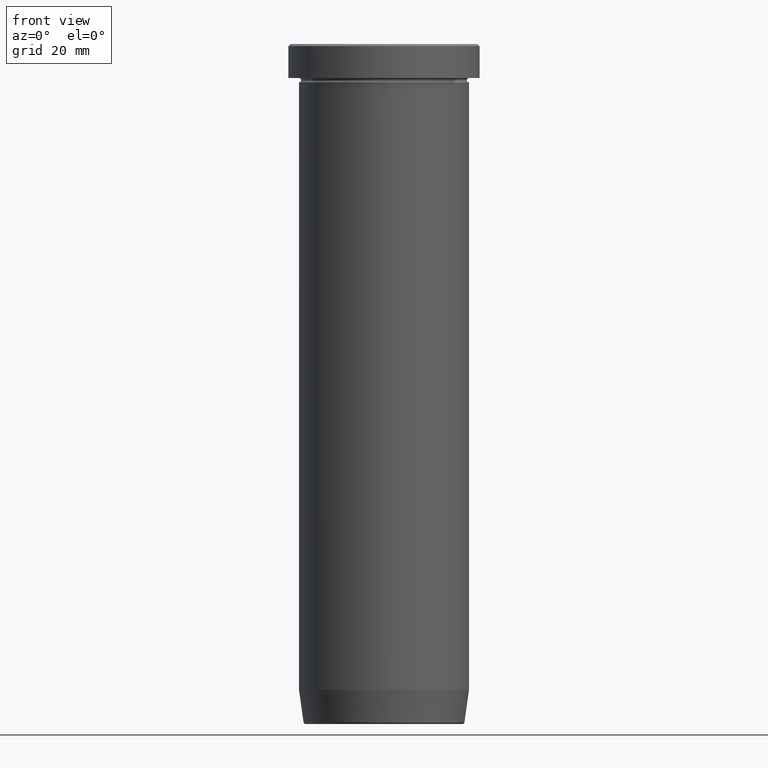
[diagram: clean part render]
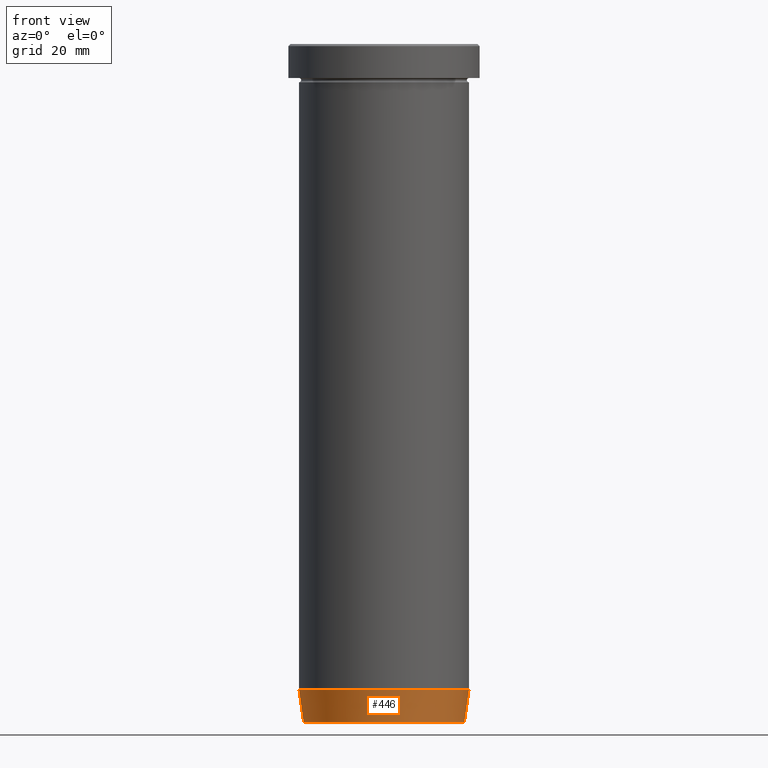
[diagram: same view with one face highlighted and labeled with its STEP entity id]
A machine part, front view. The second image highlights one B-rep face of the part: STEP entity #446.
In plain terms, the highlighted conical surface has half-angle 8 deg.
Its self-contained STEP definition (entity closure, byte-faithful):
#15 = LINE ( 'NONE', #220, #165 ) ;
#21 = VECTOR ( 'NONE', #522, 1000.000000000000227 ) ;
#30 = DIRECTION ( 'NONE',  ( 1.000000000000000000, 0.000000000000000000, 0.000000000000000000 ) ) ;
#52 = FACE_OUTER_BOUND ( 'NONE', #341, .T. ) ;
#56 = DIRECTION ( 'NONE',  ( -1.000000000000000000, 0.000000000000000000, 0.000000000000000000 ) ) ;
#94 = VERTEX_POINT ( 'NONE', #115 ) ;
#98 = VERTEX_POINT ( 'NONE', #535 ) ;
#102 = AXIS2_PLACEMENT_3D ( 'NONE', #124, #132, #30 ) ;
#115 = CARTESIAN_POINT ( 'NONE',  ( 20.00000000000000000, 0.000000000000000000, -151.9999999999999716 ) ) ;
#123 = CIRCLE ( 'NONE', #171, 18.93616398784353194 ) ;
#124 = CARTESIAN_POINT ( 'NONE',  ( 0.000000000000000000, 0.000000000000000000, -159.9999999999999716 ) ) ;
#125 = DIRECTION ( 'NONE',  ( -0.1391731009600663260, 1.704378926181566459E-17, 0.9902680687415701399 ) ) ;
#126 = ORIENTED_EDGE ( 'NONE', *, *, #276, .F. ) ;
#132 = DIRECTION ( 'NONE',  ( -0.000000000000000000, -0.000000000000000000, 1.000000000000000000 ) ) ;
#143 = DIRECTION ( 'NONE',  ( 1.000000000000000000, 0.000000000000000000, 0.000000000000000000 ) ) ;
#154 = CARTESIAN_POINT ( 'NONE',  ( 0.000000000000000000, 0.000000000000000000, -159.5695865504800111 ) ) ;
#165 = VECTOR ( 'NONE', #125, 1000.000000000000227 ) ;
#171 = AXIS2_PLACEMENT_3D ( 'NONE', #154, #534, #56 ) ;
#172 = CARTESIAN_POINT ( 'NONE',  ( 18.93616398784353194, 0.000000000000000000, -159.5695865504800111 ) ) ;
#197 = ORIENTED_EDGE ( 'NONE', *, *, #387, .F. ) ;
#220 = CARTESIAN_POINT ( 'NONE',  ( -18.87567332238086237, 2.311603291600480972E-15, -159.9999999999999716 ) ) ;
#229 = EDGE_CURVE ( 'NONE', #98, #506, #123, .T. ) ;
#276 = EDGE_CURVE ( 'NONE', #438, #94, #431, .T. ) ;
#329 = DIRECTION ( 'NONE',  ( -0.000000000000000000, -0.000000000000000000, 1.000000000000000000 ) ) ;
#341 = EDGE_LOOP ( 'NONE', ( #197, #448, #576, #126 ) ) ;
#349 = CARTESIAN_POINT ( 'NONE',  ( -20.00000000000000000, 2.449293598294706513E-15, -151.9999999999999716 ) ) ;
#387 = EDGE_CURVE ( 'NONE', #98, #438, #15, .T. ) ;
#406 = AXIS2_PLACEMENT_3D ( 'NONE', #517, #329, #143 ) ;
#410 = EDGE_CURVE ( 'NONE', #506, #94, #560, .T. ) ;
#431 = CIRCLE ( 'NONE', #406, 20.00000000000000000 ) ;
#438 = VERTEX_POINT ( 'NONE', #349 ) ;
#446 = ADVANCED_FACE ( 'NONE', ( #52 ), #460, .T. ) ;
#448 = ORIENTED_EDGE ( 'NONE', *, *, #229, .T. ) ;
#460 = CONICAL_SURFACE ( 'NONE', #102, 18.87567332238086237, 0.1396263401595472520 ) ;
#506 = VERTEX_POINT ( 'NONE', #172 ) ;
#517 = CARTESIAN_POINT ( 'NONE',  ( 0.000000000000000000, 0.000000000000000000, -151.9999999999999716 ) ) ;
#518 = CARTESIAN_POINT ( 'NONE',  ( 18.87567332238086237, 0.000000000000000000, -159.9999999999999716 ) ) ;
#522 = DIRECTION ( 'NONE',  ( 0.1391731009600663260, 0.000000000000000000, 0.9902680687415701399 ) ) ;
#534 = DIRECTION ( 'NONE',  ( -0.000000000000000000, -0.000000000000000000, 1.000000000000000000 ) ) ;
#535 = CARTESIAN_POINT ( 'NONE',  ( -18.93616398784353194, 2.384152429939451232E-15, -159.5695865504800111 ) ) ;
#560 = LINE ( 'NONE', #518, #21 ) ;
#576 = ORIENTED_EDGE ( 'NONE', *, *, #410, .T. ) ;